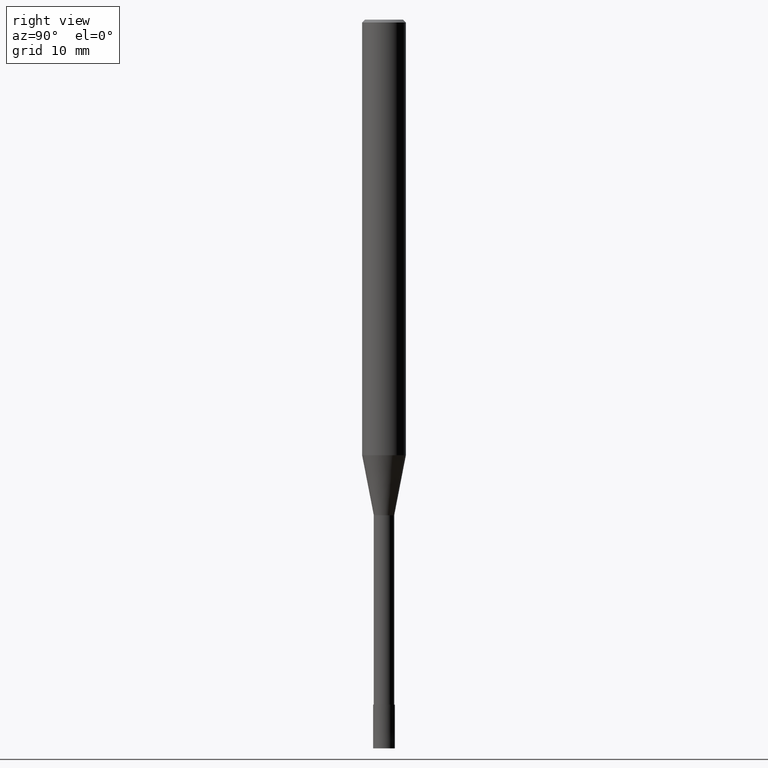
[diagram: clean part render]
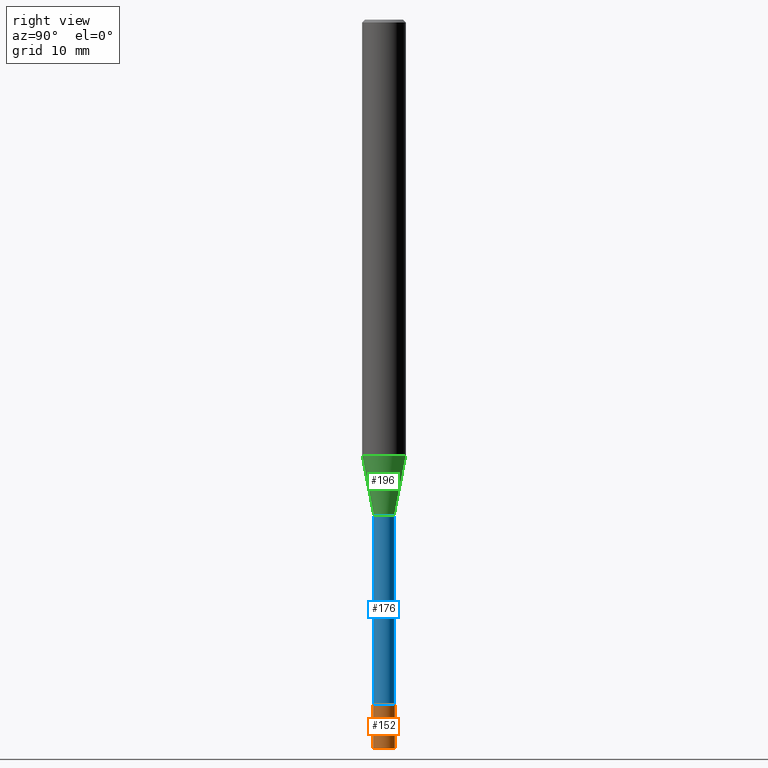
[diagram: same view with three faces highlighted in distinct colors, each labeled with its STEP entity id]
A machine part, right view with three faces highlighted in distinct colors.
Their STEP definitions:

[orange] entity #152 — the highlighted conical surface has half-angle 0.001 deg.
#94=VERTEX_POINT('',#231);
#104=VERTEX_POINT('',#242);
#110=EDGE_CURVE('',#104,#178,#250,.T.);
#126=VERTEX_POINT('',#268);
#128=EDGE_CURVE('',#104,#94,#270,.T.);
#142=EDGE_CURVE('',#94,#126,#284,.T.);
#152=ADVANCED_FACE('',(#295),#296,.T.);
#166=EDGE_CURVE('',#126,#178,#311,.T.);
#178=VERTEX_POINT('',#326);
#231=CARTESIAN_POINT('',(0.0,1.5,-100.0));
#242=CARTESIAN_POINT('',(0.0,1.4999,-94.0));
#250=CIRCLE('',#400,1.4999);
#268=CARTESIAN_POINT('',(1.83690953073357E-016,-1.5,-100.0));
#270=LINE('',#424,#425);
#284=CIRCLE('',#448,1.5);
#295=FACE_OUTER_BOUND('',#464,.T.);
#296=CONICAL_SURFACE('',#465,1.49995,1.66666666651216E-005);
#311=LINE('',#484,#485);
#326=CARTESIAN_POINT('',(1.83678707009818E-016,-1.4999,-94.0));
#400=AXIS2_PLACEMENT_3D('',#564,#565,#566);
#424=CARTESIAN_POINT('',(-1.83684830041587E-016,1.49995,-97.0));
#425=VECTOR('',#588,1.0);
#448=AXIS2_PLACEMENT_3D('',#598,#599,#600);
#464=EDGE_LOOP('',(#615,#616,#617,#618));
#465=AXIS2_PLACEMENT_3D('',#619,#620,#621);
#484=CARTESIAN_POINT('',(1.83684830041587E-016,-1.49995,-97.0));
#485=VECTOR('',#637,1.0);
#564=CARTESIAN_POINT('',(0.0,0.0,-94.0));
#565=DIRECTION('',(0.0,0.0,-1.0));
#566=DIRECTION('',(0.0,1.0,0.0));
#588=DIRECTION('',(-2.04101058942026E-021,1.666666666435E-005,-0.999999999861111));
#598=CARTESIAN_POINT('',(0.0,0.0,-100.0));
#599=DIRECTION('',(0.0,0.0,-1.0));
#600=DIRECTION('',(0.0,1.0,0.0));
#615=ORIENTED_EDGE('',*,*,#128,.F.);
#616=ORIENTED_EDGE('',*,*,#110,.T.);
#617=ORIENTED_EDGE('',*,*,#166,.F.);
#618=ORIENTED_EDGE('',*,*,#142,.F.);
#619=CARTESIAN_POINT('',(0.0,0.0,-97.0));
#620=DIRECTION('',(0.0,-0.0,-1.0));
#621=DIRECTION('',(0.0,1.0,0.0));
#637=DIRECTION('',(-2.04101058942026E-021,1.666666666435E-005,0.999999999861111));

[blue] entity #176 — the highlighted cylindrical surface (edge-blend (fillet) strip) has radius 1.4 mm, axis along (-0, -0, 1).
#100=EDGE_CURVE('',#116,#156,#238,.T.);
#108=EDGE_CURVE('',#184,#116,#248,.T.);
#116=VERTEX_POINT('',#257);
#118=EDGE_CURVE('',#122,#156,#259,.T.);
#122=VERTEX_POINT('',#264);
#140=EDGE_CURVE('',#122,#184,#282,.T.);
#156=VERTEX_POINT('',#301);
#176=ADVANCED_FACE('',(#323),#324,.T.);
#184=VERTEX_POINT('',#333);
#238=LINE('',#385,#386);
#248=CIRCLE('',#397,1.39995);
#257=CARTESIAN_POINT('',(1.71438766503364E-016,-1.39995,-94.0));
#259=CIRCLE('',#411,1.39995);
#264=CARTESIAN_POINT('',(0.0,1.39995,-68.0));
#282=LINE('',#444,#445);
#301=CARTESIAN_POINT('',(1.71438766503364E-016,-1.39995,-68.0));
#323=FACE_OUTER_BOUND('',#498,.T.);
#324=CYLINDRICAL_SURFACE('',#499,1.39995);
#333=CARTESIAN_POINT('',(0.0,1.39995,-94.0));
#385=CARTESIAN_POINT('',(1.71438766503364E-016,-1.39995,-81.0));
#386=VECTOR('',#552,1.0);
#397=AXIS2_PLACEMENT_3D('',#561,#562,#563);
#411=AXIS2_PLACEMENT_3D('',#576,#577,#578);
#444=CARTESIAN_POINT('',(-1.71438766503364E-016,1.39995,-81.0));
#445=VECTOR('',#597,1.0);
#498=EDGE_LOOP('',(#658,#659,#660,#661));
#499=AXIS2_PLACEMENT_3D('',#662,#663,#664);
#552=DIRECTION('',(-0.0,-0.0,1.0));
#561=CARTESIAN_POINT('',(0.0,0.0,-94.0));
#562=DIRECTION('',(0.0,0.0,-1.0));
#563=DIRECTION('',(0.0,1.0,0.0));
#576=CARTESIAN_POINT('',(0.0,0.0,-68.0));
#577=DIRECTION('',(0.0,0.0,-1.0));
#578=DIRECTION('',(0.0,1.0,0.0));
#597=DIRECTION('',(0.0,0.0,-1.0));
#658=ORIENTED_EDGE('',*,*,#140,.F.);
#659=ORIENTED_EDGE('',*,*,#118,.T.);
#660=ORIENTED_EDGE('',*,*,#100,.F.);
#661=ORIENTED_EDGE('',*,*,#108,.F.);
#662=CARTESIAN_POINT('',(0.0,0.0,-81.0));
#663=DIRECTION('',(-0.0,-0.0,1.0));
#664=DIRECTION('',(0.0,1.0,0.0));

[green] entity #196 — the highlighted conical surface has half-angle 11 deg.
#92=EDGE_CURVE('',#156,#160,#229,.T.);
#118=EDGE_CURVE('',#122,#156,#259,.T.);
#122=VERTEX_POINT('',#264);
#136=EDGE_CURVE('',#206,#122,#278,.T.);
#156=VERTEX_POINT('',#301);
#160=VERTEX_POINT('',#305);
#162=EDGE_CURVE('',#206,#160,#307,.T.);
#196=ADVANCED_FACE('',(#346),#347,.T.);
#206=VERTEX_POINT('',#359);
#229=LINE('',#375,#376);
#259=CIRCLE('',#411,1.39995);
#264=CARTESIAN_POINT('',(0.0,1.39995,-68.0));
#278=LINE('',#437,#438);
#301=CARTESIAN_POINT('',(1.71438766503364E-016,-1.39995,-68.0));
#305=CARTESIAN_POINT('',(3.67375783114944E-016,-2.99995,-59.769));
#307=CIRCLE('',#478,2.99995);
#346=FACE_OUTER_BOUND('',#524,.T.);
#347=CONICAL_SURFACE('',#525,2.19995,0.191992735564386);
#359=CARTESIAN_POINT('',(0.0,2.99995,-59.769));
#375=CARTESIAN_POINT('',(2.69407274809154E-016,-2.19995,-63.8845));
#376=VECTOR('',#542,1.0);
#411=AXIS2_PLACEMENT_3D('',#576,#577,#578);
#437=CARTESIAN_POINT('',(-2.69407274809154E-016,2.19995,-63.8845));
#438=VECTOR('',#593,1.0);
#478=AXIS2_PLACEMENT_3D('',#631,#632,#633);
#524=EDGE_LOOP('',(#690,#691,#692,#693));
#525=AXIS2_PLACEMENT_3D('',#694,#695,#696);
#542=DIRECTION('',(2.33673743245985E-017,-0.190815393466331,0.981625939763355));
#576=CARTESIAN_POINT('',(0.0,0.0,-68.0));
#577=DIRECTION('',(0.0,0.0,-1.0));
#578=DIRECTION('',(0.0,1.0,0.0));
#593=DIRECTION('',(2.33673743245985E-017,-0.190815393466331,-0.981625939763355));
#631=CARTESIAN_POINT('',(0.0,0.0,-59.769));
#632=DIRECTION('',(0.0,0.0,-1.0));
#633=DIRECTION('',(0.0,1.0,0.0));
#690=ORIENTED_EDGE('',*,*,#136,.F.);
#691=ORIENTED_EDGE('',*,*,#162,.T.);
#692=ORIENTED_EDGE('',*,*,#92,.F.);
#693=ORIENTED_EDGE('',*,*,#118,.F.);
#694=CARTESIAN_POINT('',(0.0,0.0,-63.8845));
#695=DIRECTION('',(-0.0,-0.0,1.0));
#696=DIRECTION('',(0.0,1.0,0.0));